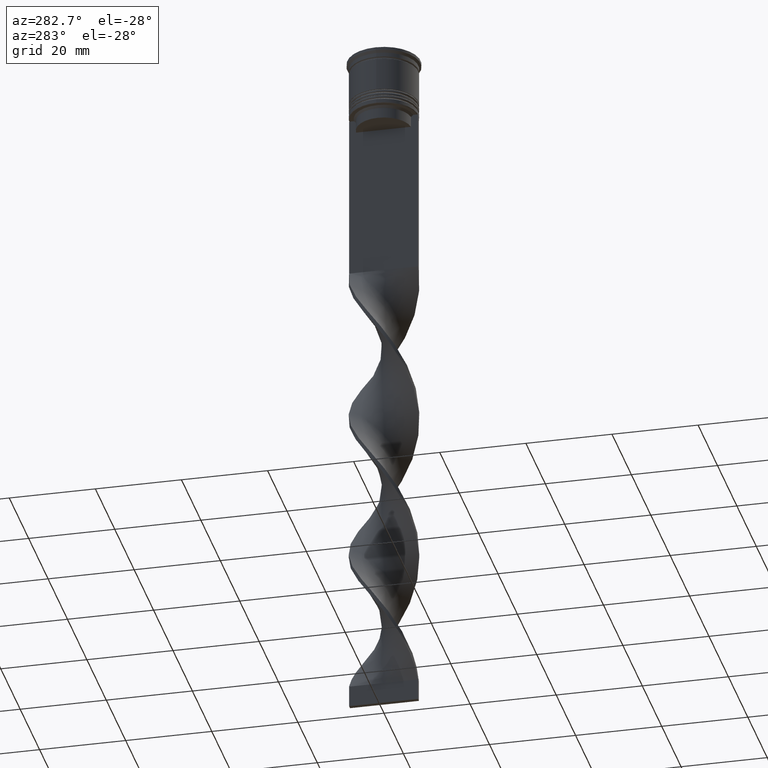
[diagram: clean part render]
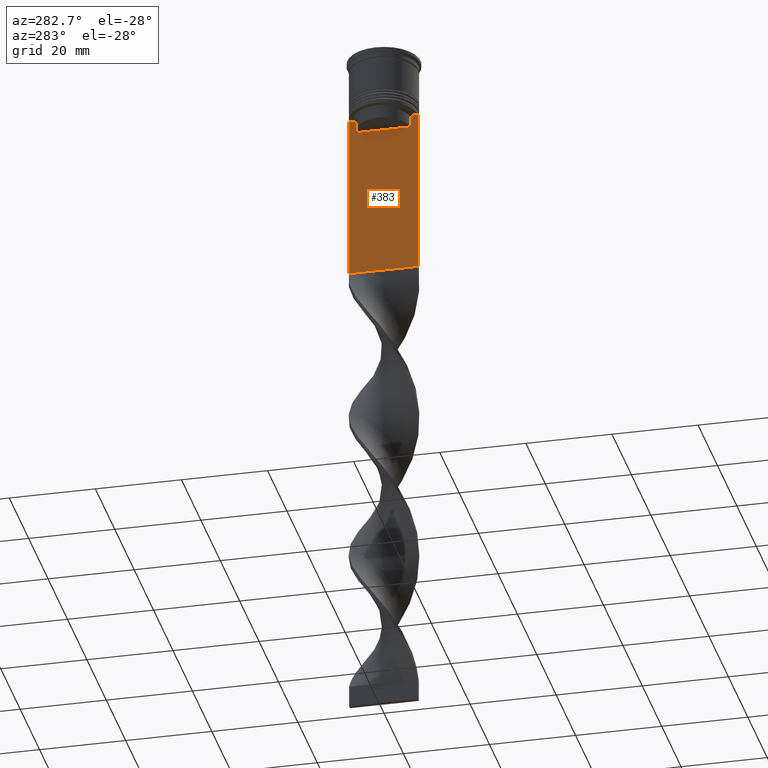
[diagram: same view with one face highlighted and labeled with its STEP entity id]
A machine part, auxiliary view. The second image highlights one B-rep face of the part: STEP entity #383.
In plain terms, the highlighted planar face has unit normal (-1, 0, 0).
Its self-contained STEP definition (entity closure, byte-faithful):
#15 = EDGE_CURVE ( 'NONE', #1142, #1858, #324, .T. ) ;
#18 = CARTESIAN_POINT ( 'NONE',  ( -0.4999999999999998890, -8.000000000000003553, -14.00000000000000178 ) ) ;
#39 = ORIENTED_EDGE ( 'NONE', *, *, #1601, .F. ) ;
#40 = CARTESIAN_POINT ( 'NONE',  ( -0.4999999999999998890, -8.000000000000003553, -53.00000000000000000 ) ) ;
#74 = DIRECTION ( 'NONE',  ( 0.000000000000000000, -1.000000000000000000, 0.000000000000000000 ) ) ;
#113 = EDGE_CURVE ( 'NONE', #2219, #1397, #313, .T. ) ;
#119 = CARTESIAN_POINT ( 'NONE',  ( -0.4999999999999998890, 6.714736947114692711, -14.16668390704818847 ) ) ;
#259 = CARTESIAN_POINT ( 'NONE',  ( -0.4999999999999998890, -8.000000000000003553, -53.00000000000000000 ) ) ;
#307 = CARTESIAN_POINT ( 'NONE',  ( -0.4999999999999998890, -6.881860213634098500, -14.00000000000000178 ) ) ;
#312 = VERTEX_POINT ( 'NONE', #259 ) ;
#313 = LINE ( 'NONE', #555, #3173 ) ;
#316 = DIRECTION ( 'NONE',  ( 0.000000000000000000, 0.000000000000000000, 1.000000000000000000 ) ) ;
#324 = B_SPLINE_CURVE_WITH_KNOTS ( 'NONE', 3,
 ( #2858, #463, #3336, #1631 ),
 .UNSPECIFIED., .F., .F.,
 ( 4, 4 ),
 ( 0.02996184199614749730, 0.03067452609193703841 ),
 .UNSPECIFIED. ) ;
#356 = FACE_OUTER_BOUND ( 'NONE', #2538, .T. ) ;
#360 = CARTESIAN_POINT ( 'NONE',  ( -0.4999999999999998890, 6.881860213634098500, -14.00000000000000178 ) ) ;
#383 = ADVANCED_FACE ( 'NONE', ( #356 ), #1761, .T. ) ;
#463 = CARTESIAN_POINT ( 'NONE',  ( -0.4999999999999998890, -6.547597841511246131, -14.33335192438652328 ) ) ;
#487 = ORIENTED_EDGE ( 'NONE', *, *, #1443, .F. ) ;
#492 = DIRECTION ( 'NONE',  ( 0.000000000000000000, -1.000000000000000000, 0.000000000000000000 ) ) ;
#522 = VECTOR ( 'NONE', #74, 1000.000000000000000 ) ;
#555 = CARTESIAN_POINT ( 'NONE',  ( -0.4999999999999998890, -8.000000000000003553, -14.00000000000000178 ) ) ;
#624 = CARTESIAN_POINT ( 'NONE',  ( -0.4999999999999998890, -6.380438856379708312, 0.000000000000000000 ) ) ;
#746 = VERTEX_POINT ( 'NONE', #1287 ) ;
#764 = VECTOR ( 'NONE', #1003, 1000.000000000000000 ) ;
#850 = VERTEX_POINT ( 'NONE', #360 ) ;
#890 = DIRECTION ( 'NONE',  ( -0.000000000000000000, -0.000000000000000000, 1.000000000000000000 ) ) ;
#971 = EDGE_CURVE ( 'NONE', #3407, #2191, #3673, .T. ) ;
#1000 = CARTESIAN_POINT ( 'NONE',  ( -0.4999999999999998890, 7.999999999999996447, -14.00000000000000178 ) ) ;
#1003 = DIRECTION ( 'NONE',  ( 0.000000000000000000, 0.000000000000000000, -1.000000000000000000 ) ) ;
#1053 = ORIENTED_EDGE ( 'NONE', *, *, #1528, .F. ) ;
#1097 = ORIENTED_EDGE ( 'NONE', *, *, #2297, .F. ) ;
#1113 = CARTESIAN_POINT ( 'NONE',  ( -0.4999999999999998890, -7.884161337770806632, -14.00000000000000178 ) ) ;
#1142 = VERTEX_POINT ( 'NONE', #2266 ) ;
#1152 = ORIENTED_EDGE ( 'NONE', *, *, #3562, .F. ) ;
#1160 = EDGE_CURVE ( 'NONE', #3407, #746, #2000, .T. ) ;
#1192 = B_SPLINE_CURVE_WITH_KNOTS ( 'NONE', 3,
 ( #2966, #119, #1283, #2411 ),
 .UNSPECIFIED., .F., .F.,
 ( 4, 4 ),
 ( 0.01172465562756038263, 0.01243276816391822651 ),
 .UNSPECIFIED. ) ;
#1206 = DIRECTION ( 'NONE',  ( 0.000000000000000000, 1.000000000000000000, 0.000000000000000000 ) ) ;
#1248 = EDGE_CURVE ( 'NONE', #312, #2191, #1787, .T. ) ;
#1259 = EDGE_CURVE ( 'NONE', #2779, #1142, #3740, .T. ) ;
#1283 = CARTESIAN_POINT ( 'NONE',  ( -0.4999999999999998890, 6.547597841304911626, -14.33335192459222718 ) ) ;
#1287 = CARTESIAN_POINT ( 'NONE',  ( -0.4999999999999998890, 7.884161337770806632, -14.00000000000000178 ) ) ;
#1393 = DIRECTION ( 'NONE',  ( 0.000000000000000000, 0.000000000000000000, -1.000000000000000000 ) ) ;
#1397 = VERTEX_POINT ( 'NONE', #18 ) ;
#1421 = ORIENTED_EDGE ( 'NONE', *, *, #971, .T. ) ;
#1431 = ORIENTED_EDGE ( 'NONE', *, *, #15, .F. ) ;
#1443 = EDGE_CURVE ( 'NONE', #1397, #312, #2746, .T. ) ;
#1461 = DIRECTION ( 'NONE',  ( 0.000000000000000000, -1.000000000000000000, 0.000000000000000000 ) ) ;
#1528 = EDGE_CURVE ( 'NONE', #1858, #2219, #3051, .T. ) ;
#1601 = EDGE_CURVE ( 'NONE', #2765, #2779, #2435, .T. ) ;
#1631 = CARTESIAN_POINT ( 'NONE',  ( -0.4999999999999998890, -6.881860213634098500, -14.00000000000000178 ) ) ;
#1711 = LINE ( 'NONE', #2257, #2946 ) ;
#1761 = PLANE ( 'NONE',  #3354 ) ;
#1787 = LINE ( 'NONE', #40, #3421 ) ;
#1788 = CARTESIAN_POINT ( 'NONE',  ( -0.4999999999999998890, 6.380438856379708312, -17.00000000000000000 ) ) ;
#1858 = VERTEX_POINT ( 'NONE', #307 ) ;
#1918 = DIRECTION ( 'NONE',  ( 0.000000000000000000, 0.000000000000000000, -1.000000000000000000 ) ) ;
#1923 = VECTOR ( 'NONE', #1393, 1000.000000000000000 ) ;
#1940 = CARTESIAN_POINT ( 'NONE',  ( -0.4999999999999998890, 7.999999999999996447, 2.031219541881394530 ) ) ;
#2000 = LINE ( 'NONE', #2793, #3183 ) ;
#2191 = VERTEX_POINT ( 'NONE', #2786 ) ;
#2219 = VERTEX_POINT ( 'NONE', #1113 ) ;
#2257 = CARTESIAN_POINT ( 'NONE',  ( -0.4999999999999998890, 6.380438856379708312, 0.000000000000000000 ) ) ;
#2266 = CARTESIAN_POINT ( 'NONE',  ( -0.4999999999999998890, -6.380438856379708312, -14.50000000000000000 ) ) ;
#2297 = EDGE_CURVE ( 'NONE', #2532, #2765, #1711, .T. ) ;
#2342 = CARTESIAN_POINT ( 'NONE',  ( -0.4999999999999998890, -6.380438856379708312, -17.00000000000000000 ) ) ;
#2352 = ORIENTED_EDGE ( 'NONE', *, *, #2423, .F. ) ;
#2411 = CARTESIAN_POINT ( 'NONE',  ( -0.4999999999999998890, 6.380438856379708312, -14.50000000000000000 ) ) ;
#2423 = EDGE_CURVE ( 'NONE', #850, #2532, #1192, .T. ) ;
#2435 = LINE ( 'NONE', #3563, #522 ) ;
#2532 = VERTEX_POINT ( 'NONE', #3627 ) ;
#2538 = EDGE_LOOP ( 'NONE', ( #2352, #1152, #3077, #1421, #3355, #487, #2783, #1053, #1431, #2830, #39, #1097 ) ) ;
#2716 = CARTESIAN_POINT ( 'NONE',  ( -0.4999999999999998890, -8.000000000000003553, -14.00000000000000178 ) ) ;
#2746 = LINE ( 'NONE', #3275, #764 ) ;
#2765 = VERTEX_POINT ( 'NONE', #1788 ) ;
#2769 = VECTOR ( 'NONE', #492, 1000.000000000000000 ) ;
#2779 = VERTEX_POINT ( 'NONE', #2342 ) ;
#2783 = ORIENTED_EDGE ( 'NONE', *, *, #113, .F. ) ;
#2786 = CARTESIAN_POINT ( 'NONE',  ( -0.4999999999999998890, 7.999999999999996447, -53.00000000000000000 ) ) ;
#2793 = CARTESIAN_POINT ( 'NONE',  ( -0.4999999999999998890, -8.000000000000003553, -14.00000000000000178 ) ) ;
#2812 = DIRECTION ( 'NONE',  ( 0.000000000000000000, -1.000000000000000000, 0.000000000000000000 ) ) ;
#2830 = ORIENTED_EDGE ( 'NONE', *, *, #1259, .F. ) ;
#2858 = CARTESIAN_POINT ( 'NONE',  ( -0.4999999999999998890, -6.380438856379708312, -14.50000000000000000 ) ) ;
#2946 = VECTOR ( 'NONE', #1918, 1000.000000000000000 ) ;
#2966 = CARTESIAN_POINT ( 'NONE',  ( -0.4999999999999998890, 6.881860213634098500, -14.00000000000000178 ) ) ;
#3051 = LINE ( 'NONE', #2716, #3545 ) ;
#3077 = ORIENTED_EDGE ( 'NONE', *, *, #1160, .F. ) ;
#3087 = LINE ( 'NONE', #3678, #2769 ) ;
#3173 = VECTOR ( 'NONE', #1461, 1000.000000000000000 ) ;
#3183 = VECTOR ( 'NONE', #2812, 1000.000000000000000 ) ;
#3226 = DIRECTION ( 'NONE',  ( -1.000000000000000000, 0.000000000000000000, 0.000000000000000000 ) ) ;
#3275 = CARTESIAN_POINT ( 'NONE',  ( -0.4999999999999998890, -8.000000000000003553, 2.031219541881394530 ) ) ;
#3281 = CARTESIAN_POINT ( 'NONE',  ( -0.4999999999999998890, -8.000000000000003553, 2.031219541881394530 ) ) ;
#3331 = DIRECTION ( 'NONE',  ( 0.000000000000000000, -1.000000000000000000, 0.000000000000000000 ) ) ;
#3336 = CARTESIAN_POINT ( 'NONE',  ( -0.4999999999999998890, -6.714736947305992132, -14.16668390685738999 ) ) ;
#3354 = AXIS2_PLACEMENT_3D ( 'NONE', #3281, #3226, #316 ) ;
#3355 = ORIENTED_EDGE ( 'NONE', *, *, #1248, .F. ) ;
#3357 = VECTOR ( 'NONE', #890, 1000.000000000000000 ) ;
#3407 = VERTEX_POINT ( 'NONE', #1000 ) ;
#3421 = VECTOR ( 'NONE', #1206, 1000.000000000000000 ) ;
#3545 = VECTOR ( 'NONE', #3331, 1000.000000000000000 ) ;
#3562 = EDGE_CURVE ( 'NONE', #746, #850, #3087, .T. ) ;
#3563 = CARTESIAN_POINT ( 'NONE',  ( -0.4999999999999998890, 6.399999999999999467, -17.00000000000000000 ) ) ;
#3627 = CARTESIAN_POINT ( 'NONE',  ( -0.4999999999999998890, 6.380438856379708312, -14.50000000000000000 ) ) ;
#3673 = LINE ( 'NONE', #1940, #1923 ) ;
#3678 = CARTESIAN_POINT ( 'NONE',  ( -0.4999999999999998890, -8.000000000000003553, -14.00000000000000178 ) ) ;
#3740 = LINE ( 'NONE', #624, #3357 ) ;